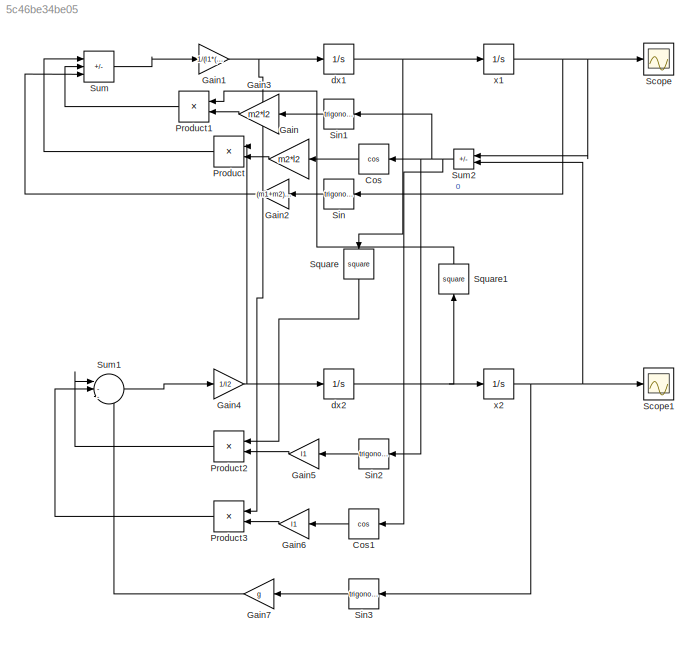
MODEL slx_5c46be34be05
KIND model
CONFIG AbsTol = auto
CONFIG EnableMultiTasking = off
CONFIG FixedStep = auto
CONFIG MaxStep = .00001
CONFIG MinStep = auto
CONFIG RelTol = 1e-3
CONFIG SampleTimeConstraint = Unconstrained
CONFIG SolverName = VariableStepAuto
CONFIG StartTime = 0.0
CONFIG StopTime = 10
BLOCK [Trigonometry] Cos
  NameLocation = top
  Operator = cos
BLOCK [Trigonometry] Cos1
  NameLocation = top
  Operator = cos
BLOCK [Gain] Gain
  Gain = m2*l2
  NameLocation = top
BLOCK [Gain] Gain1
  Gain = 1/(l1*(m1+m2))
BLOCK [Gain] Gain2
  Gain = (m1+m2)*g
  NameLocation = top
BLOCK [Gain] Gain3
  Gain = m2*l2
  NameLocation = top
BLOCK [Gain] Gain4
  Gain = 1/l2
BLOCK [Gain] Gain5
  Gain = l1
  NameLocation = top
BLOCK [Gain] Gain6
  Gain = l1
  NameLocation = top
BLOCK [Gain] Gain7
  Gain = g
  NameLocation = top
BLOCK [Product] Product
  NameLocation = top
BLOCK [Product] Product1
  NameLocation = top
BLOCK [Product] Product2
  NameLocation = top
BLOCK [Product] Product3
  NameLocation = top
BLOCK [Scope] Scope
  Floating = off
  NumInputPorts = 1
  ScopeSpecificationString = Simulink.scopes.TimeScopeBlockCfg('CurrentConfiguration', extmgr.ConfigurationSet(extmgr.Configuration('Core','General UI',true),extmgr.Configuration('Core','Source UI',true),extmgr.Configuration('Sources','WiredSimulink',true),extmgr.Configuration('Visuals','Time Domain',true,'SerializedDisplays',{struct('MinYLimReal','-0.39249','MaxYLimReal','0.39137','YLabelReal','','MinYLimMag','0.00000','MaxY...<+1354ch>
BLOCK [Scope] Scope1
  Floating = off
  NumInputPorts = 1
  ScopeSpecificationString = Simulink.scopes.TimeScopeBlockCfg('CurrentConfiguration', extmgr.ConfigurationSet(extmgr.Configuration('Core','General UI',true),extmgr.Configuration('Core','Source UI',true),extmgr.Configuration('Sources','WiredSimulink',true,'DataLoggingVariableName','ScopeData1'),extmgr.Configuration('Visuals','Time Domain',true,'SerializedDisplays',{struct('MinYLimReal','-0.76298','MaxYLimReal','0.76351','YLab...<+1390ch>
BLOCK [Trigonometry] Sin
  NameLocation = top
BLOCK [Trigonometry] Sin1
  NameLocation = top
BLOCK [Trigonometry] Sin2
  NameLocation = top
BLOCK [Trigonometry] Sin3
  NameLocation = top
BLOCK [Math] Square
  NameLocation = left
  Operator = square
BLOCK [Math] Square1
  NameLocation = right
  Operator = square
BLOCK [Sum] Sum
  IconShape = rectangular
  Inputs = |-+-
BLOCK [Sum] Sum1
  Inputs = |---
BLOCK [Sum] Sum2
  IconShape = rectangular
  Inputs = |-+
  NameLocation = top
BLOCK [Integrator] dx1
BLOCK [Integrator] dx2
BLOCK [Integrator] x1
BLOCK [Integrator] x2
  InitialCondition = (35*pi)/180
LINE Cos1:1 -> Gain6:1
LINE Cos:1 -> Gain:1
NET Gain1:1 -> Product3:1, dx1:1
LINE Gain2:1 -> Sum:3
LINE Gain3:1 -> Product1:2
NET Gain4:1 -> Product:1, dx2:1
LINE Gain5:1 -> Product2:2
LINE Gain6:1 -> Product3:2
LINE Gain7:1 -> Sum1:3
LINE Gain:1 -> Product:2
LINE Product1:1 -> Sum:2
LINE Product2:1 -> Sum1:1
LINE Product3:1 -> Sum1:2
LINE Product:1 -> Sum:1
LINE Sin1:1 -> Gain3:1
LINE Sin2:1 -> Gain5:1
LINE Sin3:1 -> Gain7:1
LINE Sin:1 -> Gain2:1
LINE Square1:1 -> Product1:1
LINE Square:1 -> Product2:1
LINE Sum1:1 -> Gain4:1
NET Sum2:1 -> Cos1:1, Cos:1, Sin1:1, Sin2:1
LINE Sum:1 -> Gain1:1
NET dx1:1 -> Square:1, x1:1
NET dx2:1 -> Square1:1, x2:1
NET x1:1 -> Scope:1, Sin:1, Sum2:1
NET x2:1 -> Scope1:1, Sin3:1, Sum2:2
note: NET lines group one-source signal fan-out (src -> all destinations, sorted); 1:1 wires keep LINE
